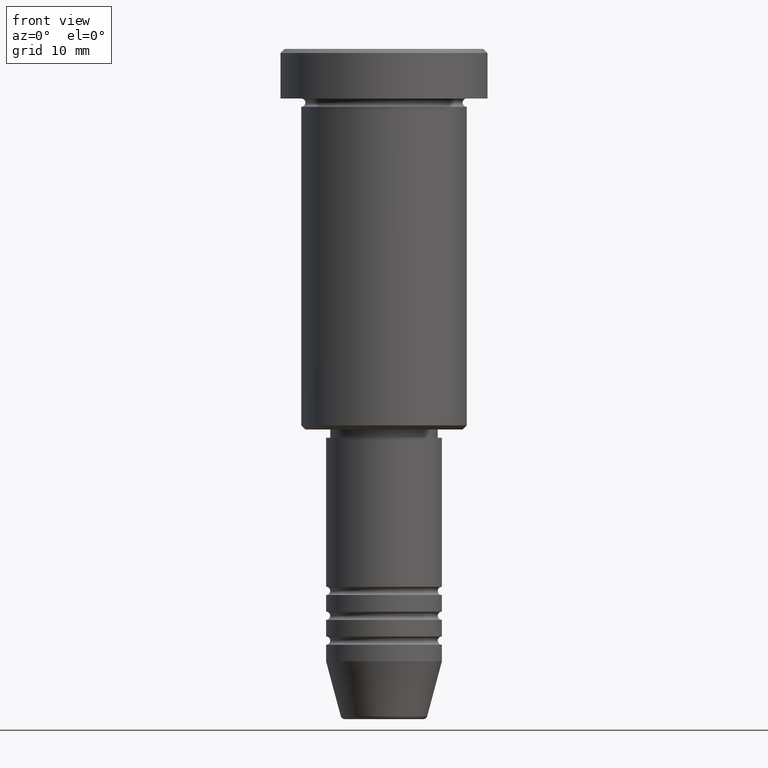
[diagram: clean part render]
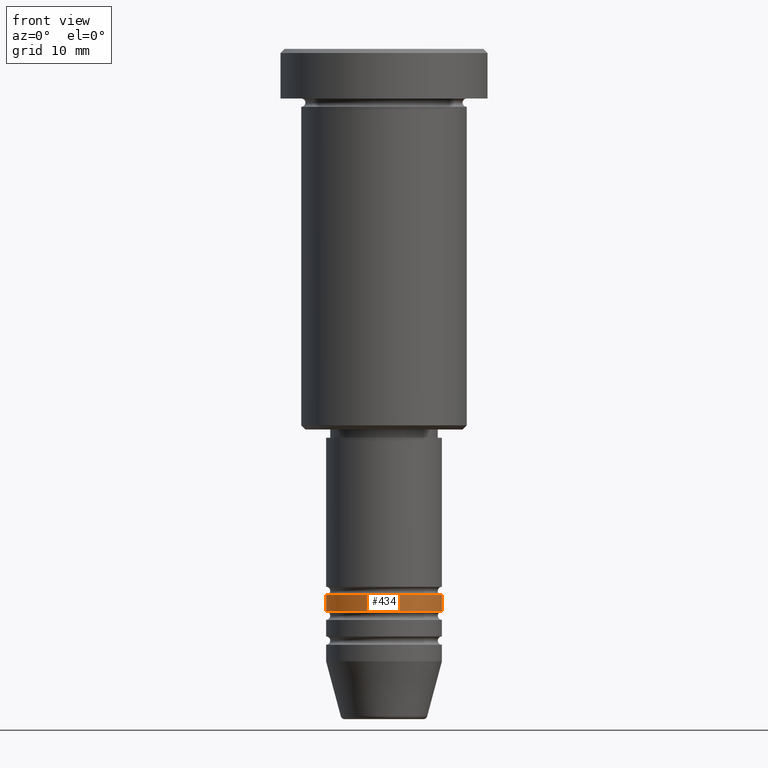
[diagram: same view with one face highlighted and labeled with its STEP entity id]
A machine part, front view. The second image highlights one B-rep face of the part: STEP entity #434.
In plain terms, the highlighted cylindrical surface (partial cylindrical patch) has radius 7 mm, axis along (-0, -0, 1).
Its self-contained STEP definition (entity closure, byte-faithful):
#7 = CIRCLE ( 'NONE', #1122, 7.000000000000000000 ) ;
#8 = EDGE_CURVE ( 'NONE', #981, #760, #261, .T. ) ;
#74 = EDGE_CURVE ( 'NONE', #1076, #1085, #1181, .T. ) ;
#79 = CARTESIAN_POINT ( 'NONE',  ( 7.000000000000000000, 0.000000000000000000, 0.000000000000000000 ) ) ;
#158 = CARTESIAN_POINT ( 'NONE',  ( 0.000000000000000000, 0.000000000000000000, -67.99999999999998579 ) ) ;
#203 = CARTESIAN_POINT ( 'NONE',  ( -7.000000000000000000, 8.572527594031473190E-16, -65.99999999999998579 ) ) ;
#206 = ORIENTED_EDGE ( 'NONE', *, *, #8, .T. ) ;
#233 = ORIENTED_EDGE ( 'NONE', *, *, #834, .F. ) ;
#258 = DIRECTION ( 'NONE',  ( -0.000000000000000000, -0.000000000000000000, 1.000000000000000000 ) ) ;
#261 = LINE ( 'NONE', #79, #305 ) ;
#305 = VECTOR ( 'NONE', #348, 1000.000000000000000 ) ;
#347 = DIRECTION ( 'NONE',  ( 1.000000000000000000, 0.000000000000000000, 0.000000000000000000 ) ) ;
#348 = DIRECTION ( 'NONE',  ( -0.000000000000000000, -0.000000000000000000, 1.000000000000000000 ) ) ;
#349 = DIRECTION ( 'NONE',  ( 1.000000000000000000, 0.000000000000000000, 0.000000000000000000 ) ) ;
#350 = ORIENTED_EDGE ( 'NONE', *, *, #74, .F. ) ;
#355 = CARTESIAN_POINT ( 'NONE',  ( -7.000000000000000000, 8.572527594031473190E-16, 0.000000000000000000 ) ) ;
#434 = ADVANCED_FACE ( 'NONE', ( #619 ), #990, .T. ) ;
#516 = ORIENTED_EDGE ( 'NONE', *, *, #889, .T. ) ;
#519 = CIRCLE ( 'NONE', #932, 7.000000000000000000 ) ;
#584 = EDGE_LOOP ( 'NONE', ( #350, #516, #206, #233 ) ) ;
#619 = FACE_OUTER_BOUND ( 'NONE', #584, .T. ) ;
#642 = CARTESIAN_POINT ( 'NONE',  ( -7.000000000000000000, 8.572527594031473190E-16, -67.99999999999998579 ) ) ;
#760 = VERTEX_POINT ( 'NONE', #964 ) ;
#784 = DIRECTION ( 'NONE',  ( 1.000000000000000000, 0.000000000000000000, 0.000000000000000000 ) ) ;
#800 = CARTESIAN_POINT ( 'NONE',  ( 0.000000000000000000, 0.000000000000000000, -65.99999999999998579 ) ) ;
#834 = EDGE_CURVE ( 'NONE', #1085, #760, #519, .T. ) ;
#840 = VECTOR ( 'NONE', #989, 1000.000000000000000 ) ;
#842 = AXIS2_PLACEMENT_3D ( 'NONE', #1058, #1079, #349 ) ;
#889 = EDGE_CURVE ( 'NONE', #1076, #981, #7, .T. ) ;
#932 = AXIS2_PLACEMENT_3D ( 'NONE', #800, #1077, #784 ) ;
#964 = CARTESIAN_POINT ( 'NONE',  ( 7.000000000000000000, 0.000000000000000000, -65.99999999999998579 ) ) ;
#981 = VERTEX_POINT ( 'NONE', #1061 ) ;
#989 = DIRECTION ( 'NONE',  ( -0.000000000000000000, -0.000000000000000000, 1.000000000000000000 ) ) ;
#990 = CYLINDRICAL_SURFACE ( 'NONE', #842, 7.000000000000000000 ) ;
#1058 = CARTESIAN_POINT ( 'NONE',  ( 0.000000000000000000, 0.000000000000000000, 0.000000000000000000 ) ) ;
#1061 = CARTESIAN_POINT ( 'NONE',  ( 7.000000000000000000, 0.000000000000000000, -67.99999999999998579 ) ) ;
#1076 = VERTEX_POINT ( 'NONE', #642 ) ;
#1077 = DIRECTION ( 'NONE',  ( -0.000000000000000000, -0.000000000000000000, 1.000000000000000000 ) ) ;
#1079 = DIRECTION ( 'NONE',  ( -0.000000000000000000, -0.000000000000000000, 1.000000000000000000 ) ) ;
#1085 = VERTEX_POINT ( 'NONE', #203 ) ;
#1122 = AXIS2_PLACEMENT_3D ( 'NONE', #158, #258, #347 ) ;
#1181 = LINE ( 'NONE', #355, #840 ) ;